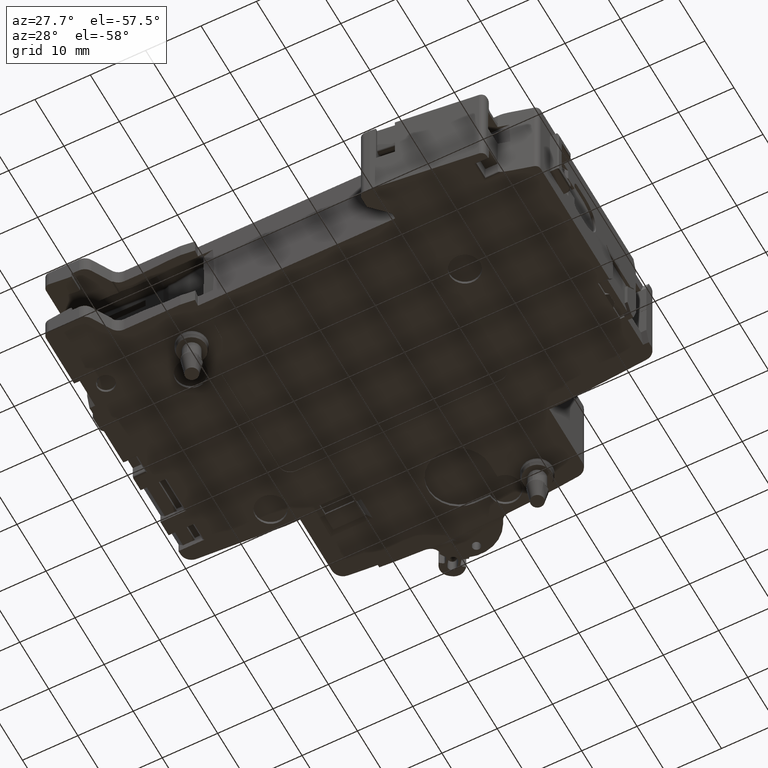
[diagram: clean part render]
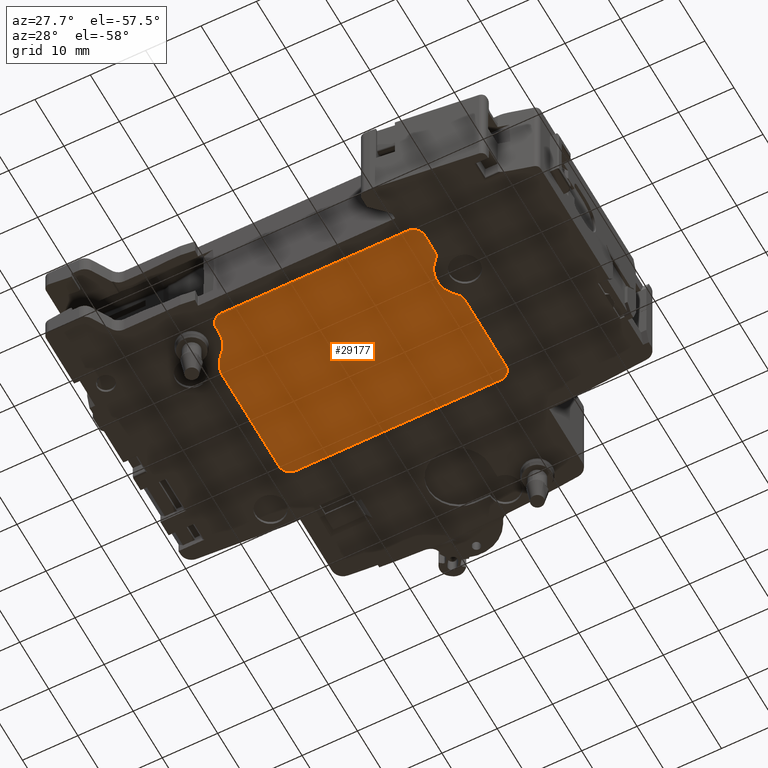
[diagram: same view with one face highlighted and labeled with its STEP entity id]
A machine part, auxiliary view. The second image highlights one B-rep face of the part: STEP entity #29177.
In plain terms, the highlighted planar face has unit normal (0, 0, -1).
Its self-contained STEP definition (entity closure, byte-faithful):
#11006=CARTESIAN_POINT('',(1.818556198625E1,3.55E1,-8.625E0));
#11007=DIRECTION('',(0.E0,0.E0,-1.E0));
#11008=DIRECTION('',(0.E0,1.E0,0.E0));
#11009=AXIS2_PLACEMENT_3D('',#11006,#11007,#11008);
#11011=DIRECTION('',(1.E0,0.E0,0.E0));
#11012=VECTOR('',#11011,3.7E1);
#11013=CARTESIAN_POINT('',(-1.881443801375E1,3.75E1,-8.625E0));
#11014=LINE('',#11013,#11012);
#11015=CARTESIAN_POINT('',(-1.881443801375E1,3.55E1,-8.625E0));
#11016=DIRECTION('',(0.E0,0.E0,-1.E0));
#11017=DIRECTION('',(-1.E0,0.E0,0.E0));
#11018=AXIS2_PLACEMENT_3D('',#11015,#11016,#11017);
#11020=DIRECTION('',(0.E0,1.E0,0.E0));
#11021=VECTOR('',#11020,1.936338377163E1);
#11022=CARTESIAN_POINT('',(-2.081443801375E1,1.613661622837E1,-8.625E0));
#11023=LINE('',#11022,#11021);
#11024=CARTESIAN_POINT('',(-1.581443801375E1,1.613661622837E1,-8.625E0));
#11025=DIRECTION('',(0.E0,0.E0,-1.E0));
#11026=DIRECTION('',(-6.685561986247E-1,-7.436616228369E-1,0.E0));
#11027=AXIS2_PLACEMENT_3D('',#11024,#11025,#11026);
#11029=CARTESIAN_POINT('',(-2.25E1,8.7E0,-8.625E0));
#11030=DIRECTION('',(0.E0,0.E0,1.E0));
#11031=DIRECTION('',(1.E0,0.E0,0.E0));
#11032=AXIS2_PLACEMENT_3D('',#11029,#11030,#11031);
#11034=DIRECTION('',(0.E0,1.E0,0.E0));
#11035=VECTOR('',#11034,1.2E0);
#11036=CARTESIAN_POINT('',(-1.75E1,7.5E0,-8.625E0));
#11037=LINE('',#11036,#11035);
#11038=CARTESIAN_POINT('',(-1.55E1,7.5E0,-8.625E0));
#11039=DIRECTION('',(0.E0,0.E0,-1.E0));
#11040=DIRECTION('',(0.E0,-1.E0,0.E0));
#11041=AXIS2_PLACEMENT_3D('',#11038,#11039,#11040);
#11043=DIRECTION('',(-1.E0,0.E0,0.E0));
#11044=VECTOR('',#11043,3.368556198625E1);
#11045=CARTESIAN_POINT('',(1.818556198625E1,5.5E0,-8.625E0));
#11046=LINE('',#11045,#11044);
#11047=CARTESIAN_POINT('',(1.818556198625E1,7.5E0,-8.625E0));
#11048=DIRECTION('',(0.E0,0.E0,-1.E0));
#11049=DIRECTION('',(1.E0,0.E0,0.E0));
#11050=AXIS2_PLACEMENT_3D('',#11047,#11048,#11049);
#11052=DIRECTION('',(0.E0,-1.E0,0.E0));
#11053=VECTOR('',#11052,3.525632964846E0);
#11054=CARTESIAN_POINT('',(2.018556198625E1,1.102563296485E1,-8.625E0));
#11055=LINE('',#11054,#11053);
#11056=CARTESIAN_POINT('',(1.818556198625E1,1.102563296485E1,-8.625E0));
#11057=DIRECTION('',(0.E0,0.E0,-1.E0));
#11058=DIRECTION('',(6.734911448218E-1,7.391952907362E-1,0.E0));
#11059=AXIS2_PLACEMENT_3D('',#11056,#11057,#11058);
#11061=CARTESIAN_POINT('',(2.29E1,1.62E1,-8.625E0));
#11062=DIRECTION('',(0.E0,0.E0,1.E0));
#11063=DIRECTION('',(-6.734911448218E-1,7.391952907362E-1,0.E0));
#11064=AXIS2_PLACEMENT_3D('',#11061,#11062,#11063);
#11066=CARTESIAN_POINT('',(1.818556198625E1,2.137436703515E1,-8.625E0));
#11067=DIRECTION('',(0.E0,0.E0,-1.E0));
#11068=DIRECTION('',(1.E0,0.E0,0.E0));
#11069=AXIS2_PLACEMENT_3D('',#11066,#11067,#11068);
#11071=DIRECTION('',(0.E0,-1.E0,0.E0));
#11072=VECTOR('',#11071,1.412563296485E1);
#11073=CARTESIAN_POINT('',(2.018556198625E1,3.55E1,-8.625E0));
#11074=LINE('',#11073,#11072);
#12140=CARTESIAN_POINT('',(1.818556198625E1,3.75E1,-8.625E0));
#12141=CARTESIAN_POINT('',(2.018556198625E1,3.55E1,-8.625E0));
#12142=VERTEX_POINT('',#12140);
#12143=VERTEX_POINT('',#12141);
#12144=CARTESIAN_POINT('',(2.018556198625E1,1.102563296485E1,-8.625E0));
#12145=CARTESIAN_POINT('',(2.018556198625E1,7.5E0,-8.625E0));
#12146=VERTEX_POINT('',#12144);
#12147=VERTEX_POINT('',#12145);
#12148=CARTESIAN_POINT('',(1.818556198625E1,5.5E0,-8.625E0));
#12149=VERTEX_POINT('',#12148);
#12150=CARTESIAN_POINT('',(-1.55E1,5.5E0,-8.625E0));
#12151=VERTEX_POINT('',#12150);
#12152=CARTESIAN_POINT('',(-1.75E1,8.7E0,-8.625E0));
#12153=CARTESIAN_POINT('',(-1.915721900688E1,1.241830811418E1,-8.625E0));
#12154=VERTEX_POINT('',#12152);
#12155=VERTEX_POINT('',#12153);
#12156=CARTESIAN_POINT('',(-2.081443801375E1,1.613661622837E1,-8.625E0));
#12157=CARTESIAN_POINT('',(-2.081443801375E1,3.55E1,-8.625E0));
#12158=VERTEX_POINT('',#12156);
#12159=VERTEX_POINT('',#12157);
#12160=CARTESIAN_POINT('',(-1.881443801375E1,3.75E1,-8.625E0));
#12161=VERTEX_POINT('',#12160);
#12184=CARTESIAN_POINT('',(2.018556198625E1,2.137436703515E1,-8.625E0));
#12185=VERTEX_POINT('',#12184);
#12186=CARTESIAN_POINT('',(1.953254427589E1,1.989597645368E1,-8.625E0));
#12187=VERTEX_POINT('',#12186);
#12188=CARTESIAN_POINT('',(1.953254427589E1,1.250402354632E1,-8.625E0));
#12189=VERTEX_POINT('',#12188);
#12190=CARTESIAN_POINT('',(-1.75E1,7.5E0,-8.625E0));
#12191=VERTEX_POINT('',#12190);
#29155=CARTESIAN_POINT('',(-2.75E1,2.5E0,-8.625E0));
#29156=DIRECTION('',(0.E0,0.E0,-1.E0));
#29157=DIRECTION('',(-1.E0,0.E0,0.E0));
#29158=AXIS2_PLACEMENT_3D('',#29155,#29156,#29157);
#29159=PLANE('',#29158);
#29160=ORIENTED_EDGE('',*,*,#28953,.F.);
#29161=ORIENTED_EDGE('',*,*,#28968,.F.);
#29162=ORIENTED_EDGE('',*,*,#28982,.F.);
#29163=ORIENTED_EDGE('',*,*,#28996,.F.);
#29164=ORIENTED_EDGE('',*,*,#29010,.F.);
#29165=ORIENTED_EDGE('',*,*,#29024,.F.);
#29166=ORIENTED_EDGE('',*,*,#29038,.F.);
#29167=ORIENTED_EDGE('',*,*,#29052,.F.);
#29168=ORIENTED_EDGE('',*,*,#29066,.F.);
#29169=ORIENTED_EDGE('',*,*,#29080,.F.);
#29170=ORIENTED_EDGE('',*,*,#29094,.F.);
#29171=ORIENTED_EDGE('',*,*,#29108,.F.);
#29172=ORIENTED_EDGE('',*,*,#29122,.F.);
#29173=ORIENTED_EDGE('',*,*,#29136,.F.);
#29174=ORIENTED_EDGE('',*,*,#29149,.F.);
#29175=EDGE_LOOP('',(#29160,#29161,#29162,#29163,#29164,#29165,#29166,#29167,
#29168,#29169,#29170,#29171,#29172,#29173,#29174));
#29176=FACE_OUTER_BOUND('',#29175,.F.);
#11010=CIRCLE('',#11009,2.E0);
#11019=CIRCLE('',#11018,2.E0);
#11028=CIRCLE('',#11027,5.E0);
#11033=CIRCLE('',#11032,5.E0);
#11042=CIRCLE('',#11041,2.E0);
#11051=CIRCLE('',#11050,2.E0);
#11060=CIRCLE('',#11059,2.E0);
#11065=CIRCLE('',#11064,5.E0);
#11070=CIRCLE('',#11069,2.E0);
#28953=EDGE_CURVE('',#12142,#12143,#11010,.T.);
#28968=EDGE_CURVE('',#12161,#12142,#11014,.T.);
#28982=EDGE_CURVE('',#12159,#12161,#11019,.T.);
#28996=EDGE_CURVE('',#12158,#12159,#11023,.T.);
#29010=EDGE_CURVE('',#12155,#12158,#11028,.T.);
#29024=EDGE_CURVE('',#12154,#12155,#11033,.T.);
#29038=EDGE_CURVE('',#12191,#12154,#11037,.T.);
#29052=EDGE_CURVE('',#12151,#12191,#11042,.T.);
#29066=EDGE_CURVE('',#12149,#12151,#11046,.T.);
#29080=EDGE_CURVE('',#12147,#12149,#11051,.T.);
#29094=EDGE_CURVE('',#12146,#12147,#11055,.T.);
#29108=EDGE_CURVE('',#12189,#12146,#11060,.T.);
#29122=EDGE_CURVE('',#12187,#12189,#11065,.T.);
#29136=EDGE_CURVE('',#12185,#12187,#11070,.T.);
#29149=EDGE_CURVE('',#12143,#12185,#11074,.T.);
#29177=ADVANCED_FACE('',(#29176),#29159,.T.);